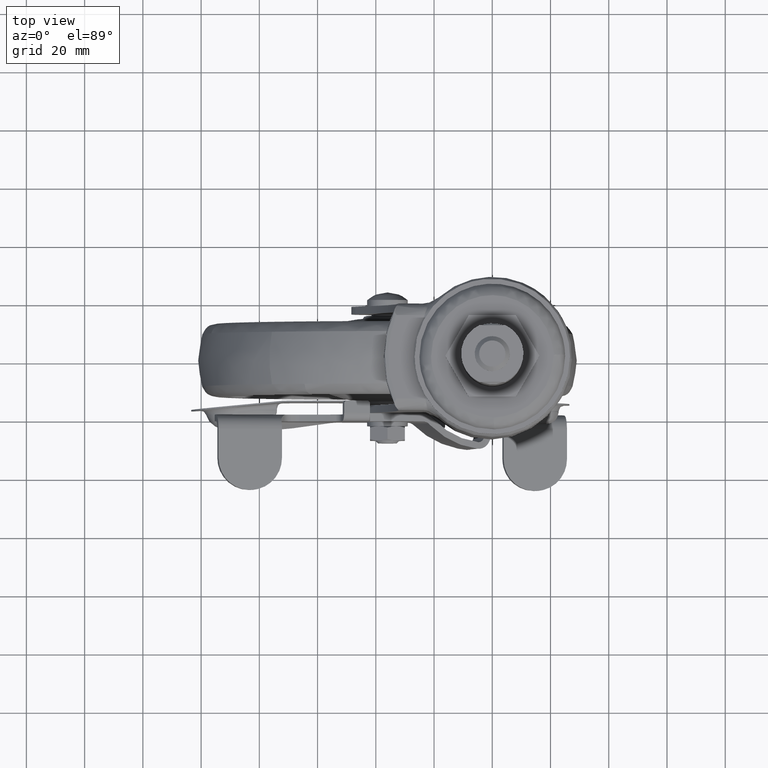
[diagram: clean part render]
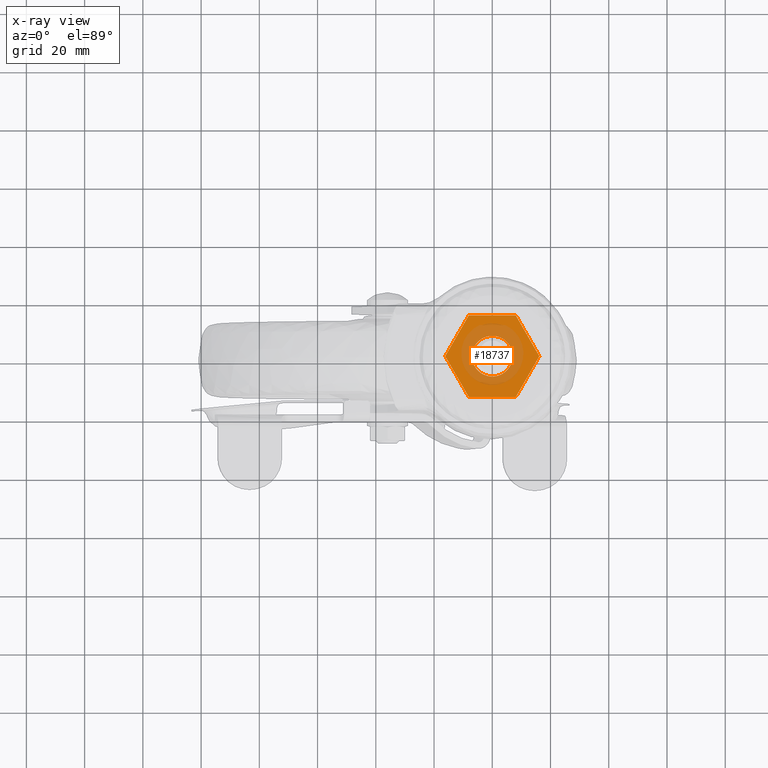
[diagram: x-ray — body ghosted, one internal face saturated and labeled with its STEP entity id]
A machine part, top view, then the same camera in x-ray: the body is ghosted and one INTERNAL B-rep face — a face not visible from any outside direction — is saturated and labeled: STEP entity #18737.
In plain terms, the highlighted face is a freeform B-spline surface patch.
Its self-contained STEP definition (entity closure, byte-faithful):
#16766=CARTESIAN_POINT('',(-3.044270882016891,-6.303365354864344,-3.499977999999830));
#16767=VERTEX_POINT('',#16766);
#16773=CARTESIAN_POINT('',(-7.0,0.0,-3.499977999999830));
#16774=VERTEX_POINT('',#16773);
#16775=CARTESIAN_POINT('',(-7.0,0.0,-3.499977999999830));
#16776=CARTESIAN_POINT('',(-7.000000000000001,-4.392907957378172,-3.499977999999830));
#16777=CARTESIAN_POINT('',(-3.044270882016891,-6.303365354864344,-3.499977999999830));
#16785=(BOUNDED_CURVE()B_SPLINE_CURVE(2,(#16775,#16776,#16777),.UNSPECIFIED.,.F.,.U.)B_SPLINE_CURVE_WITH_KNOTS((3,3),(0.500000000000000,0.676099498974007),.UNSPECIFIED.)CURVE()GEOMETRIC_REPRESENTATION_ITEM()RATIONAL_B_SPLINE_CURVE((1.0,0.793686603656267,0.878026693134591))REPRESENTATION_ITEM(''));
#16786=EDGE_CURVE('',#16774,#16767,#16785,.T.);
#16788=CARTESIAN_POINT('',(2.678784026577482,6.467156727569954,-3.499977999999830));
#16789=VERTEX_POINT('',#16788);
#16790=CARTESIAN_POINT('',(2.678784026577481,6.467156727569954,-3.499977999999830));
#16791=CARTESIAN_POINT('',(1.392386571682196,6.999999999999999,-3.499977999999831));
#16792=CARTESIAN_POINT('',(0.0,7.0,-3.499977999999830));
#16793=CARTESIAN_POINT('',(-6.999999999999999,6.999999999999999,-3.499977999999830));
#16794=CARTESIAN_POINT('',(-7.0,0.0,-3.499977999999830));
#16802=(BOUNDED_CURVE()B_SPLINE_CURVE(2,(#16790,#16791,#16792,#16793,#16794),.UNSPECIFIED.,.F.,.U.)B_SPLINE_CURVE_WITH_KNOTS((3,2,3),(0.185027116880404,0.250000000000000,0.500000000000000),.UNSPECIFIED.)CURVE()GEOMETRIC_REPRESENTATION_ITEM()RATIONAL_B_SPLINE_CURVE((0.887325194917961,0.923879532510045,1.0,0.707106781186547,1.0))REPRESENTATION_ITEM(''));
#16803=EDGE_CURVE('',#16789,#16774,#16802,.T.);
#17119=CARTESIAN_POINT('',(7.0,0.0,-3.499977999999830));
#17120=VERTEX_POINT('',#17119);
#17121=CARTESIAN_POINT('',(7.0,0.0,-3.499977999999830));
#17122=CARTESIAN_POINT('',(6.999999999999999,4.677250465400874,-3.499977999999830));
#17123=CARTESIAN_POINT('',(2.678784026577481,6.467156727569954,-3.499977999999830));
#17131=(BOUNDED_CURVE()B_SPLINE_CURVE(2,(#17121,#17122,#17123),.UNSPECIFIED.,.F.,.U.)B_SPLINE_CURVE_WITH_KNOTS((3,3),(0.0,0.185027116880404),.UNSPECIFIED.)CURVE()GEOMETRIC_REPRESENTATION_ITEM()RATIONAL_B_SPLINE_CURVE((1.0,0.783227248676503,0.887325194917961))REPRESENTATION_ITEM(''));
#17132=EDGE_CURVE('',#17120,#16789,#17131,.T.);
#17134=CARTESIAN_POINT('',(-3.044270882016891,-6.303365354864344,-3.499977999999830));
#17135=CARTESIAN_POINT('',(-1.601842511729775,-7.0,-3.499977999999830));
#17136=CARTESIAN_POINT('',(0.0,-7.0,-3.499977999999830));
#17137=CARTESIAN_POINT('',(6.999999999999999,-6.999999999999999,-3.499977999999830));
#17138=CARTESIAN_POINT('',(7.0,0.0,-3.499977999999830));
#17146=(BOUNDED_CURVE()B_SPLINE_CURVE(2,(#17134,#17135,#17136,#17137,#17138),.UNSPECIFIED.,.F.,.U.)B_SPLINE_CURVE_WITH_KNOTS((3,2,3),(0.676099498974007,0.750000000000000,1.0),.UNSPECIFIED.)CURVE()GEOMETRIC_REPRESENTATION_ITEM()RATIONAL_B_SPLINE_CURVE((0.878026693134591,0.913420177530280,1.0,0.707106781186547,1.0))REPRESENTATION_ITEM(''));
#17147=EDGE_CURVE('',#16767,#17120,#17146,.T.);
#18544=CARTESIAN_POINT('',(-8.082903999999900,14.0,-3.499977999999795));
#18545=VERTEX_POINT('',#18544);
#18551=CARTESIAN_POINT('',(-16.165807000000001,0.0,-3.499977999999795));
#18552=VERTEX_POINT('',#18551);
#18553=CARTESIAN_POINT('',(-16.165807000000001,0.0,-3.499977999999795));
#18554=CARTESIAN_POINT('',(-8.082903999999900,14.0,-3.499977999999795));
#18555=QUASI_UNIFORM_CURVE('',1,(#18553,#18554),.UNSPECIFIED.,.F.,.U.);
#18556=EDGE_CURVE('',#18552,#18545,#18555,.T.);
#18579=CARTESIAN_POINT('',(-8.082903999999900,-14.0,-3.499977999999795));
#18580=VERTEX_POINT('',#18579);
#18581=CARTESIAN_POINT('',(-8.082903999999900,-14.0,-3.499977999999795));
#18582=CARTESIAN_POINT('',(-16.165807000000001,0.0,-3.499977999999795));
#18583=QUASI_UNIFORM_CURVE('',1,(#18581,#18582),.UNSPECIFIED.,.F.,.U.);
#18584=EDGE_CURVE('',#18580,#18552,#18583,.T.);
#18607=CARTESIAN_POINT('',(8.082904000000101,-14.0,-3.499977999999795));
#18608=VERTEX_POINT('',#18607);
#18609=CARTESIAN_POINT('',(8.082904000000101,-14.0,-3.499977999999795));
#18610=CARTESIAN_POINT('',(-8.082903999999900,-14.0,-3.499977999999795));
#18611=QUASI_UNIFORM_CURVE('',1,(#18609,#18610),.UNSPECIFIED.,.F.,.U.);
#18612=EDGE_CURVE('',#18608,#18580,#18611,.T.);
#18635=CARTESIAN_POINT('',(16.165808000000101,0.0,-3.499977999999795));
#18636=VERTEX_POINT('',#18635);
#18637=CARTESIAN_POINT('',(16.165808000000101,0.0,-3.499977999999795));
#18638=CARTESIAN_POINT('',(8.082904000000101,-14.0,-3.499977999999795));
#18639=QUASI_UNIFORM_CURVE('',1,(#18637,#18638),.UNSPECIFIED.,.F.,.U.);
#18640=EDGE_CURVE('',#18636,#18608,#18639,.T.);
#18663=CARTESIAN_POINT('',(8.082904000000101,14.0,-3.499977999999795));
#18664=VERTEX_POINT('',#18663);
#18665=CARTESIAN_POINT('',(8.082904000000101,14.0,-3.499977999999795));
#18666=CARTESIAN_POINT('',(16.165808000000101,0.0,-3.499977999999795));
#18667=QUASI_UNIFORM_CURVE('',1,(#18665,#18666),.UNSPECIFIED.,.F.,.U.);
#18668=EDGE_CURVE('',#18664,#18636,#18667,.T.);
#18689=CARTESIAN_POINT('',(-8.082903999999900,14.0,-3.499977999999795));
#18690=CARTESIAN_POINT('',(8.082904000000101,14.0,-3.499977999999795));
#18691=QUASI_UNIFORM_CURVE('',1,(#18689,#18690),.UNSPECIFIED.,.F.,.U.);
#18692=EDGE_CURVE('',#18545,#18664,#18691,.T.);
#18718=CARTESIAN_POINT('',(-17.780772017103271,-15.398599945730570,-3.499977999999830));
#18719=CARTESIAN_POINT('',(17.780773017103371,-15.398599945730570,-3.499977999999830));
#18720=CARTESIAN_POINT('',(-17.780772017103271,15.398600696749090,-3.499977999999830));
#18721=CARTESIAN_POINT('',(17.780773017103371,15.398600696749090,-3.499977999999830));
#18722=B_SPLINE_SURFACE_WITH_KNOTS('',1,1,((#18718,#18720),(#18719,#18721)),.UNSPECIFIED.,.F.,.F.,.U.,(2,2),(2,2),(0.0,35.561545034206631),(0.0,30.797200642479659),.UNSPECIFIED.);
#18723=ORIENTED_EDGE('',*,*,#18692,.T.);
#18724=ORIENTED_EDGE('',*,*,#18668,.T.);
#18725=ORIENTED_EDGE('',*,*,#18640,.T.);
#18726=ORIENTED_EDGE('',*,*,#18612,.T.);
#18727=ORIENTED_EDGE('',*,*,#18584,.T.);
#18728=ORIENTED_EDGE('',*,*,#18556,.T.);
#18729=EDGE_LOOP('',(#18723,#18724,#18725,#18726,#18727,#18728));
#18730=FACE_OUTER_BOUND('',#18729,.T.);
#18731=ORIENTED_EDGE('',*,*,#17132,.T.);
#18732=ORIENTED_EDGE('',*,*,#16803,.T.);
#18733=ORIENTED_EDGE('',*,*,#16786,.T.);
#18734=ORIENTED_EDGE('',*,*,#17147,.T.);
#18735=EDGE_LOOP('',(#18731,#18732,#18733,#18734));
#18736=FACE_BOUND('',#18735,.T.);
#18737=ADVANCED_FACE('',(#18730,#18736),#18722,.F.);